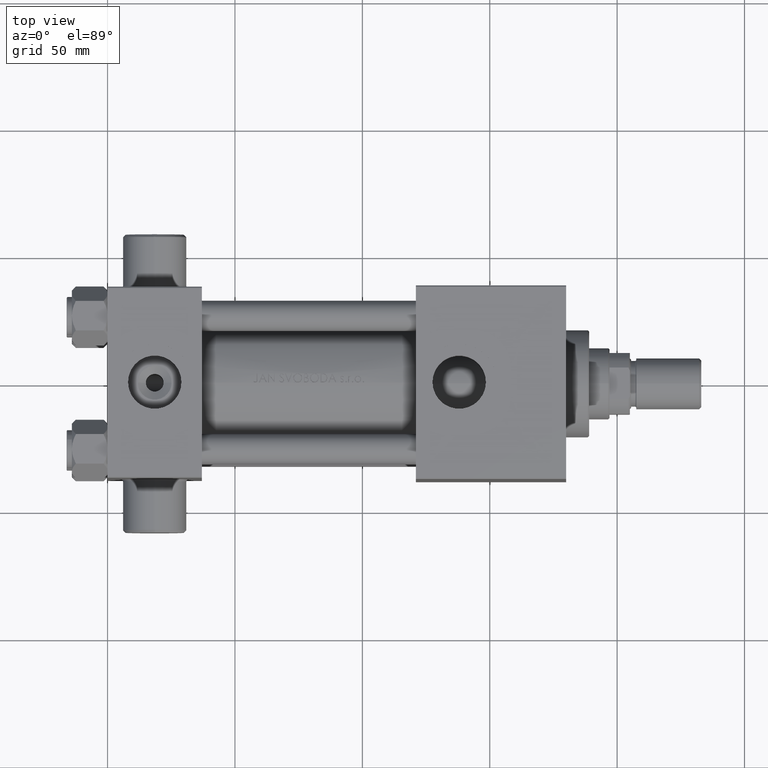
[diagram: clean part render]
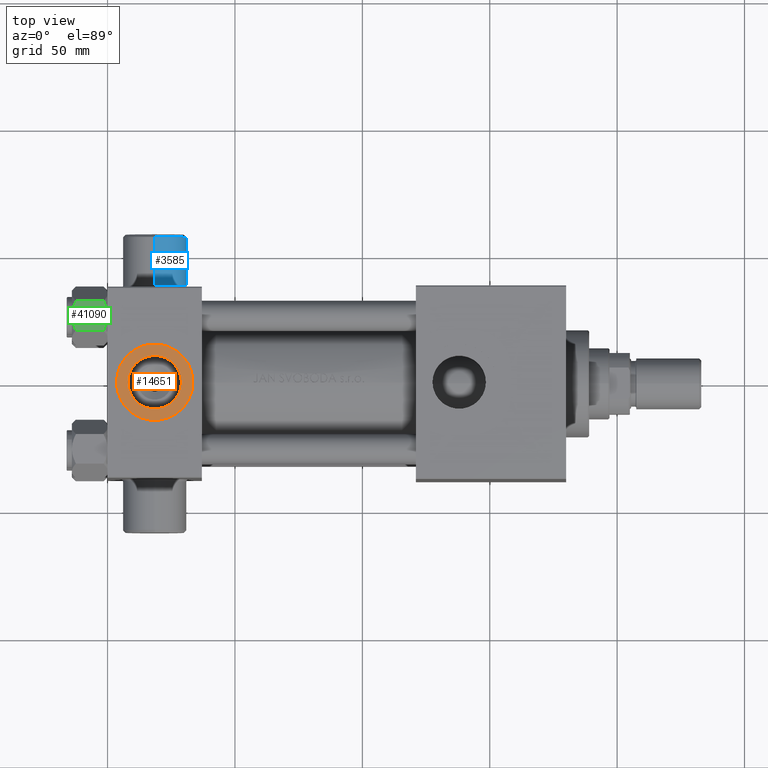
[diagram: same view with three faces highlighted in distinct colors, each labeled with its STEP entity id]
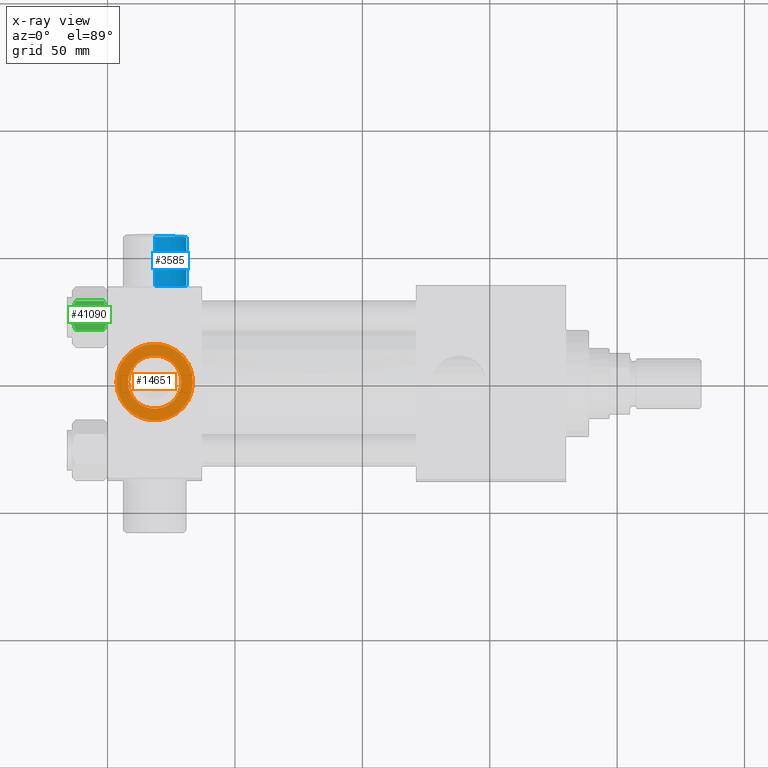
[diagram: x-ray of the same camera — body ghosted, the three highlighted faces saturated]
A machine part, top view with three faces highlighted in distinct colors.
The next image is the same camera in x-ray (body ghosted, the three faces saturated) — at least one of them is partly hidden behind the body in this view.
Their STEP definitions:

[orange] entity #14651 — the highlighted planar face has unit normal (0, 0, 1).
#637 = AXIS2_PLACEMENT_3D ( 'NONE', #2847, #14484, #43982 ) ;
#2847 = CARTESIAN_POINT ( 'NONE',  ( 18.50000000000000000, -5.204170427930421283E-15, 37.29999999999999716 ) ) ;
#3136 = ORIENTED_EDGE ( 'NONE', *, *, #12066, .F. ) ;
#3408 = VERTEX_POINT ( 'NONE', #14094 ) ;
#5903 = DIRECTION ( 'NONE',  ( 0.000000000000000000, 0.000000000000000000, 1.000000000000000000 ) ) ;
#10032 = DIRECTION ( 'NONE',  ( 0.000000000000000000, 0.000000000000000000, 1.000000000000000000 ) ) ;
#10033 = FACE_OUTER_BOUND ( 'NONE', #18621, .T. ) ;
#11186 = DIRECTION ( 'NONE',  ( 0.000000000000000000, 0.000000000000000000, 1.000000000000000000 ) ) ;
#12066 = EDGE_CURVE ( 'NONE', #33531, #44284, #48012, .T. ) ;
#13913 = EDGE_LOOP ( 'NONE', ( #36275, #3136 ) ) ;
#14094 = CARTESIAN_POINT ( 'NONE',  ( 33.50000000000000000, -5.204170427930421283E-15, 37.29999999999999716 ) ) ;
#14484 = DIRECTION ( 'NONE',  ( 0.000000000000000000, 0.000000000000000000, 1.000000000000000000 ) ) ;
#14651 = ADVANCED_FACE ( 'NONE', ( #33085, #10033 ), #25401, .T. ) ;
#14652 = CARTESIAN_POINT ( 'NONE',  ( 18.50000000000000000, -5.204170427930421283E-15, 37.29999999999999716 ) ) ;
#15904 = AXIS2_PLACEMENT_3D ( 'NONE', #43981, #10032, #25146 ) ;
#16972 = DIRECTION ( 'NONE',  ( 1.000000000000000000, 0.000000000000000000, 0.000000000000000000 ) ) ;
#18619 = DIRECTION ( 'NONE',  ( 1.000000000000000000, 0.000000000000000000, 0.000000000000000000 ) ) ;
#18621 = EDGE_LOOP ( 'NONE', ( #34206, #33274 ) ) ;
#19178 = CIRCLE ( 'NONE', #46850, 15.00000000000000355 ) ;
#20102 = CARTESIAN_POINT ( 'NONE',  ( 3.499999999999997780, -3.367200229209391300E-15, 37.29999999999999716 ) ) ;
#20745 = AXIS2_PLACEMENT_3D ( 'NONE', #14652, #11186, #18619 ) ;
#23778 = CARTESIAN_POINT ( 'NONE',  ( 8.019999999999999574, -3.920740582423995006E-15, 37.29999999999999716 ) ) ;
#25146 = DIRECTION ( 'NONE',  ( 1.000000000000000000, 0.000000000000000000, 0.000000000000000000 ) ) ;
#25401 = PLANE ( 'NONE',  #637 ) ;
#32500 = VERTEX_POINT ( 'NONE', #20102 ) ;
#33085 = FACE_BOUND ( 'NONE', #13913, .T. ) ;
#33274 = ORIENTED_EDGE ( 'NONE', *, *, #40724, .T. ) ;
#33531 = VERTEX_POINT ( 'NONE', #23778 ) ;
#34206 = ORIENTED_EDGE ( 'NONE', *, *, #38663, .T. ) ;
#36275 = ORIENTED_EDGE ( 'NONE', *, *, #43690, .F. ) ;
#37360 = CIRCLE ( 'NONE', #15904, 15.00000000000000355 ) ;
#37775 = AXIS2_PLACEMENT_3D ( 'NONE', #47453, #40536, #16972 ) ;
#38663 = EDGE_CURVE ( 'NONE', #3408, #32500, #37360, .T. ) ;
#39869 = CARTESIAN_POINT ( 'NONE',  ( 18.50000000000000000, -5.204170427930421283E-15, 37.29999999999999716 ) ) ;
#40536 = DIRECTION ( 'NONE',  ( 0.000000000000000000, 0.000000000000000000, 1.000000000000000000 ) ) ;
#40724 = EDGE_CURVE ( 'NONE', #32500, #3408, #19178, .T. ) ;
#42141 = CIRCLE ( 'NONE', #20745, 10.48000000000000043 ) ;
#43690 = EDGE_CURVE ( 'NONE', #44284, #33531, #42141, .T. ) ;
#43981 = CARTESIAN_POINT ( 'NONE',  ( 18.50000000000000000, -5.204170427930421283E-15, 37.29999999999999716 ) ) ;
#43982 = DIRECTION ( 'NONE',  ( 1.000000000000000000, 0.000000000000000000, -0.000000000000000000 ) ) ;
#44284 = VERTEX_POINT ( 'NONE', #48227 ) ;
#44801 = DIRECTION ( 'NONE',  ( 1.000000000000000000, 0.000000000000000000, 0.000000000000000000 ) ) ;
#46850 = AXIS2_PLACEMENT_3D ( 'NONE', #39869, #5903, #44801 ) ;
#47453 = CARTESIAN_POINT ( 'NONE',  ( 18.50000000000000000, -5.204170427930421283E-15, 37.29999999999999716 ) ) ;
#48012 = CIRCLE ( 'NONE', #37775, 10.48000000000000043 ) ;
#48227 = CARTESIAN_POINT ( 'NONE',  ( 28.98000000000000043, -5.204170427930421283E-15, 37.29999999999999716 ) ) ;

[blue] entity #3585 — the highlighted cylindrical surface (edge-blend (fillet) strip) has radius 12.5 mm, axis along (0, -1, 0).
#3585 = ADVANCED_FACE ( 'NONE', ( #41616 ), #7656, .T. ) ;
#4546 = LINE ( 'NONE', #19656, #42829 ) ;
#4707 = DIRECTION ( 'NONE',  ( -0.000000000000000000, -1.000000000000000000, 8.673617379884045333E-17 ) ) ;
#7656 = CYLINDRICAL_SURFACE ( 'NONE', #24155, 12.50000000000000000 ) ;
#7821 = AXIS2_PLACEMENT_3D ( 'NONE', #24139, #23896, #12018 ) ;
#7938 = CARTESIAN_POINT ( 'NONE',  ( 18.50000000000000000, 57.49999999999992895, -5.204170427930414972E-15 ) ) ;
#8144 = CARTESIAN_POINT ( 'NONE',  ( 18.50000000000000000, 38.50000000000000711, -3.556183125752455332E-15 ) ) ;
#8650 = DIRECTION ( 'NONE',  ( 0.000000000000000000, 0.000000000000000000, 1.000000000000000000 ) ) ;
#9849 = ORIENTED_EDGE ( 'NONE', *, *, #19807, .T. ) ;
#12018 = DIRECTION ( 'NONE',  ( 0.000000000000000000, 0.000000000000000000, 1.000000000000000000 ) ) ;
#12752 = VERTEX_POINT ( 'NONE', #38559 ) ;
#12878 = VERTEX_POINT ( 'NONE', #36547 ) ;
#14329 = ORIENTED_EDGE ( 'NONE', *, *, #21181, .F. ) ;
#15669 = VECTOR ( 'NONE', #33874, 1000.000000000000000 ) ;
#16977 = CARTESIAN_POINT ( 'NONE',  ( 18.50000000000000000, 38.49999999999999289, -12.50000000000000355 ) ) ;
#17374 = EDGE_CURVE ( 'NONE', #12878, #12752, #28433, .T. ) ;
#17682 = ORIENTED_EDGE ( 'NONE', *, *, #25117, .T. ) ;
#18495 = CARTESIAN_POINT ( 'NONE',  ( 18.50000000000000000, 38.50000000000000711, 12.49999999999999645 ) ) ;
#19656 = CARTESIAN_POINT ( 'NONE',  ( 18.50000000000000000, 38.50000000000000711, -12.50000000000000355 ) ) ;
#19807 = EDGE_CURVE ( 'NONE', #47673, #40171, #30003, .T. ) ;
#21181 = EDGE_CURVE ( 'NONE', #12878, #40171, #4546, .T. ) ;
#22222 = LINE ( 'NONE', #18495, #15669 ) ;
#23166 = EDGE_LOOP ( 'NONE', ( #38758, #17682, #9849, #14329 ) ) ;
#23257 = DIRECTION ( 'NONE',  ( -0.000000000000000000, -1.000000000000000000, 8.673617379884036705E-17 ) ) ;
#23896 = DIRECTION ( 'NONE',  ( -0.000000000000000000, 1.000000000000000000, 0.000000000000000000 ) ) ;
#24139 = CARTESIAN_POINT ( 'NONE',  ( 18.50000000000000000, 38.49999999999999289, -3.556183125752453755E-15 ) ) ;
#24155 = AXIS2_PLACEMENT_3D ( 'NONE', #8144, #23257, #38631 ) ;
#25117 = EDGE_CURVE ( 'NONE', #12752, #47673, #22222, .T. ) ;
#28433 = CIRCLE ( 'NONE', #29250, 12.50000000000000000 ) ;
#29250 = AXIS2_PLACEMENT_3D ( 'NONE', #7938, #4707, #8650 ) ;
#30003 = CIRCLE ( 'NONE', #7821, 12.50000000000000000 ) ;
#33874 = DIRECTION ( 'NONE',  ( -0.000000000000000000, -1.000000000000000000, 8.673617379884036705E-17 ) ) ;
#34786 = DIRECTION ( 'NONE',  ( -0.000000000000000000, -1.000000000000000000, 8.673617379884036705E-17 ) ) ;
#36547 = CARTESIAN_POINT ( 'NONE',  ( 18.50000000000000000, 57.49999999999992895, -12.50000000000000711 ) ) ;
#38559 = CARTESIAN_POINT ( 'NONE',  ( 18.50000000000000000, 57.49999999999992895, 12.49999999999999467 ) ) ;
#38631 = DIRECTION ( 'NONE',  ( 0.000000000000000000, 0.000000000000000000, -1.000000000000000000 ) ) ;
#38758 = ORIENTED_EDGE ( 'NONE', *, *, #17374, .T. ) ;
#39756 = CARTESIAN_POINT ( 'NONE',  ( 18.50000000000000000, 38.49999999999999289, 12.49999999999999645 ) ) ;
#40171 = VERTEX_POINT ( 'NONE', #16977 ) ;
#41616 = FACE_OUTER_BOUND ( 'NONE', #23166, .T. ) ;
#42829 = VECTOR ( 'NONE', #34786, 1000.000000000000000 ) ;
#47673 = VERTEX_POINT ( 'NONE', #39756 ) ;

[green] entity #41090 — the highlighted planar face has unit normal (0, 0, -1).
#374 = DIRECTION ( 'NONE',  ( 0.8660254037844390407, 0.4999999999999995004, 0.000000000000000000 ) ) ;
#520 = CARTESIAN_POINT ( 'NONE',  ( -8.715000000000006963, -5.031607595987586556, 0.000000000000000000 ) ) ;
#2097 = CARTESIAN_POINT ( 'NONE',  ( -10.69859855102500923, -1.595914123792257611, -0.7141438259524607313 ) ) ;
#2771 = CARTESIAN_POINT ( 'NONE',  ( -11.61999999999999922, 6.270720075510426383E-15, -12.44321519197518811 ) ) ;
#2879 = B_SPLINE_CURVE_WITH_KNOTS ( 'NONE', 3,
 ( #18054, #6669, #18308, #36917, #49018, #30202 ),
 .UNSPECIFIED., .F., .F.,
 ( 4, 2, 4 ),
 ( 0.006022845781655586372, 0.009013049135303635023, 0.01200325248895168367 ),
 .UNSPECIFIED. ) ;
#3418 = CARTESIAN_POINT ( 'NONE',  ( -8.715000000000005187, -5.031607595987585668, -14.00000000000000000 ) ) ;
#3662 = CARTESIAN_POINT ( 'NONE',  ( -7.700834831386345058, -6.788193195293090731, -13.80960203119265906 ) ) ;
#3699 = LINE ( 'NONE', #26002, #16429 ) ;
#4029 = VERTEX_POINT ( 'NONE', #44225 ) ;
#5582 = B_SPLINE_CURVE_WITH_KNOTS ( 'NONE', 3,
 ( #16954, #28370, #2097, #28854, #43976, #27876, #6321, #24157 ),
 .UNSPECIFIED., .F., .F.,
 ( 4, 2, 2, 4 ),
 ( 2.544312114893457383E-07, 0.003011550106433538623, 0.004517197944044561847, 0.006022845781655586372 ),
 .UNSPECIFIED. ) ;
#6321 = CARTESIAN_POINT ( 'NONE',  ( -8.969430103550386946, -4.590921729663310025, 6.662949392646161370E-15 ) ) ;
#6669 = CARTESIAN_POINT ( 'NONE',  ( -8.209704053696567527, -5.906805847843720869, 6.159623592433269699E-15 ) ) ;
#6739 = CARTESIAN_POINT ( 'NONE',  ( -8.715000000000005187, -5.031607595987585668, -14.00000000000000000 ) ) ;
#10458 = EDGE_CURVE ( 'NONE', #33344, #14339, #5582, .T. ) ;
#10939 = CARTESIAN_POINT ( 'NONE',  ( -10.69662495661650325, -1.599332489581326122, -13.28854452935654962 ) ) ;
#11818 = CARTESIAN_POINT ( 'NONE',  ( -6.265545725125286403, -9.274186850887383926, -12.89876091710047135 ) ) ;
#14223 = CARTESIAN_POINT ( 'NONE',  ( -11.61999999999999922, 6.288644352490894150E-15, -14.00000000000000000 ) ) ;
#14339 = VERTEX_POINT ( 'NONE', #520 ) ;
#15522 = CARTESIAN_POINT ( 'NONE',  ( -7.455303369716807182, -7.213466161761382445, -13.69973261901325934 ) ) ;
#16429 = VECTOR ( 'NONE', #22287, 1000.000000000000000 ) ;
#16656 = ORIENTED_EDGE ( 'NONE', *, *, #25937, .T. ) ;
#16954 = CARTESIAN_POINT ( 'NONE',  ( -11.61999999999999922, 6.270720075409452187E-15, -1.556784808024810562 ) ) ;
#18054 = CARTESIAN_POINT ( 'NONE',  ( -8.715000000000006963, -5.031607595987586556, 0.000000000000000000 ) ) ;
#18308 = CARTESIAN_POINT ( 'NONE',  ( -7.713000053756304375, -6.767122412062951398, -0.1545239700039803266 ) ) ;
#18685 = DIRECTION ( 'NONE',  ( -0.000000000000000000, -0.000000000000000000, 1.000000000000000000 ) ) ;
#18771 = CARTESIAN_POINT ( 'NONE',  ( -8.460569896449618099, -5.472293462311855095, -14.00000000000000355 ) ) ;
#19693 = DIRECTION ( 'NONE',  ( -0.4999999999999994449, 0.8660254037844389297, 0.000000000000000000 ) ) ;
#19878 = CARTESIAN_POINT ( 'NONE',  ( -11.61999999999999922, 6.270720075409452187E-15, -1.556784808024810562 ) ) ;
#21221 = VERTEX_POINT ( 'NONE', #28785 ) ;
#21982 = VECTOR ( 'NONE', #18685, 1000.000000000000000 ) ;
#22287 = DIRECTION ( 'NONE',  ( -0.000000000000000000, -0.000000000000000000, 1.000000000000000000 ) ) ;
#23811 = EDGE_CURVE ( 'NONE', #14339, #46349, #2879, .T. ) ;
#24157 = CARTESIAN_POINT ( 'NONE',  ( -8.715000000000006963, -5.031607595987586556, 0.000000000000000000 ) ) ;
#25072 = CARTESIAN_POINT ( 'NONE',  ( -11.61999999999999922, 6.270720075510426383E-15, -12.44321519197518811 ) ) ;
#25440 = EDGE_CURVE ( 'NONE', #43481, #33344, #48160, .T. ) ;
#25937 = EDGE_CURVE ( 'NONE', #4029, #46349, #3699, .T. ) ;
#26002 = CARTESIAN_POINT ( 'NONE',  ( -5.810000000000000497, -10.06321519197517844, -14.00000000000000000 ) ) ;
#26310 = CARTESIAN_POINT ( 'NONE',  ( -9.716999946243696229, -3.296092779912219495, -13.84547602999602134 ) ) ;
#27181 = CARTESIAN_POINT ( 'NONE',  ( -5.810000000000000497, -10.06321519197517844, -1.556784808024813893 ) ) ;
#27876 = CARTESIAN_POINT ( 'NONE',  ( -9.227666995912100489, -4.143642311704120118, -0.03994118060690279165 ) ) ;
#28370 = CARTESIAN_POINT ( 'NONE',  ( -11.16445427487471420, -0.7890283410877914072, -1.101239082899528432 ) ) ;
#28785 = CARTESIAN_POINT ( 'NONE',  ( -8.715000000000005187, -5.031607595987585668, -14.00000000000000000 ) ) ;
#28854 = CARTESIAN_POINT ( 'NONE',  ( -9.974696630283190757, -2.849749030213787115, -0.3002673809867329457 ) ) ;
#30013 = ORIENTED_EDGE ( 'NONE', *, *, #10458, .F. ) ;
#30202 = CARTESIAN_POINT ( 'NONE',  ( -5.810000000000000497, -10.06321519197517844, -1.556784808024813893 ) ) ;
#33033 = ORIENTED_EDGE ( 'NONE', *, *, #39949, .F. ) ;
#33344 = VERTEX_POINT ( 'NONE', #19878 ) ;
#34442 = ORIENTED_EDGE ( 'NONE', *, *, #43711, .F. ) ;
#35089 = B_SPLINE_CURVE_WITH_KNOTS ( 'NONE', 3,
 ( #6739, #44894, #26310, #10939, #40450, #2771 ),
 .UNSPECIFIED., .F., .F.,
 ( 4, 2, 4 ),
 ( 0.006022845781655597648, 0.009013049135303643697, 0.01200325248895169061 ),
 .UNSPECIFIED. ) ;
#35301 = B_SPLINE_CURVE_WITH_KNOTS ( 'NONE', 3,
 ( #45772, #11818, #41338, #15522, #3662, #37392, #18771, #3418 ),
 .UNSPECIFIED., .F., .F.,
 ( 4, 2, 2, 4 ),
 ( 2.544312114906334931E-07, 0.003011550106433545128, 0.004517197944044571388, 0.006022845781655597648 ),
 .UNSPECIFIED. ) ;
#36917 = CARTESIAN_POINT ( 'NONE',  ( -6.733375043383495573, -8.463882702393842550, -0.7114554706434480513 ) ) ;
#37392 = CARTESIAN_POINT ( 'NONE',  ( -8.202333004087901003, -5.919572880271046778, -13.96005881939309390 ) ) ;
#38785 = FACE_OUTER_BOUND ( 'NONE', #41605, .T. ) ;
#39949 = EDGE_CURVE ( 'NONE', #4029, #21221, #35301, .T. ) ;
#40450 = CARTESIAN_POINT ( 'NONE',  ( -11.16498164529022041, -0.7881149087337220305, -12.89823354668505040 ) ) ;
#41090 = ADVANCED_FACE ( 'NONE', ( #38785 ), #45726, .F. ) ;
#41338 = CARTESIAN_POINT ( 'NONE',  ( -6.731401448974990487, -8.467301068182912616, -13.28585617404753627 ) ) ;
#41605 = EDGE_LOOP ( 'NONE', ( #33033, #16656, #42827, #30013, #48975, #34442 ) ) ;
#42827 = ORIENTED_EDGE ( 'NONE', *, *, #23811, .F. ) ;
#43481 = VERTEX_POINT ( 'NONE', #25072 ) ;
#43711 = EDGE_CURVE ( 'NONE', #21221, #43481, #35089, .T. ) ;
#43976 = CARTESIAN_POINT ( 'NONE',  ( -9.729165168613654657, -3.275021996682076608, -0.1903979688073365595 ) ) ;
#44225 = CARTESIAN_POINT ( 'NONE',  ( -5.810000000000000497, -10.06321519197517844, -12.44321519197518455 ) ) ;
#44894 = CARTESIAN_POINT ( 'NONE',  ( -9.220295946303432189, -4.156409344131445138, -14.00000000000000711 ) ) ;
#45726 = PLANE ( 'NONE',  #48483 ) ;
#45772 = CARTESIAN_POINT ( 'NONE',  ( -5.810000000000000497, -10.06321519197517844, -12.44321519197518455 ) ) ;
#45966 = CARTESIAN_POINT ( 'NONE',  ( -5.810000000000000497, -10.06321519197517844, -14.00000000000000000 ) ) ;
#46349 = VERTEX_POINT ( 'NONE', #27181 ) ;
#48160 = LINE ( 'NONE', #14223, #21982 ) ;
#48483 = AXIS2_PLACEMENT_3D ( 'NONE', #45966, #374, #19693 ) ;
#48975 = ORIENTED_EDGE ( 'NONE', *, *, #25440, .F. ) ;
#49018 = CARTESIAN_POINT ( 'NONE',  ( -6.265018354709776638, -9.275100283241451748, -1.101766453314952043 ) ) ;